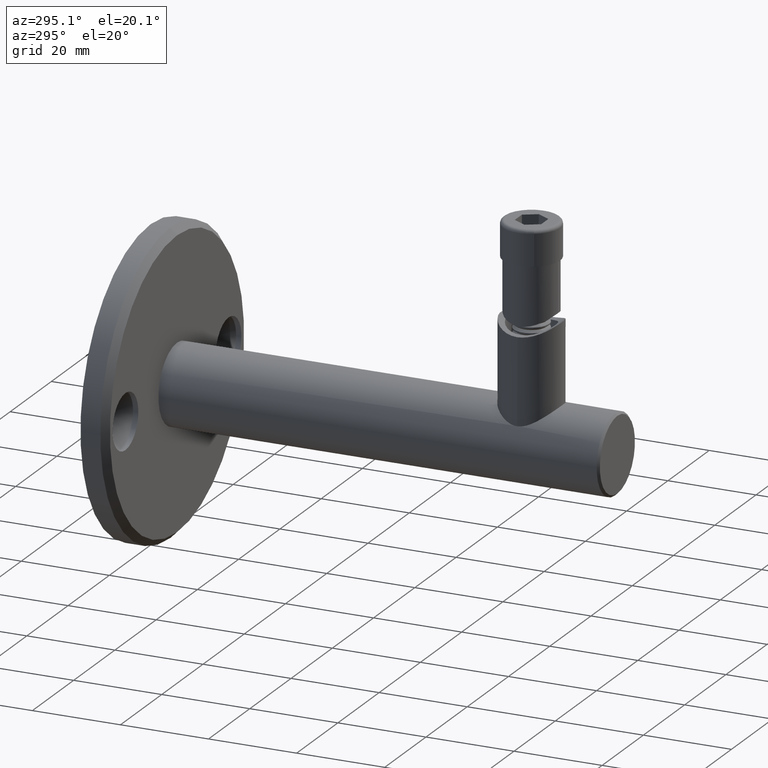
[diagram: clean part render]
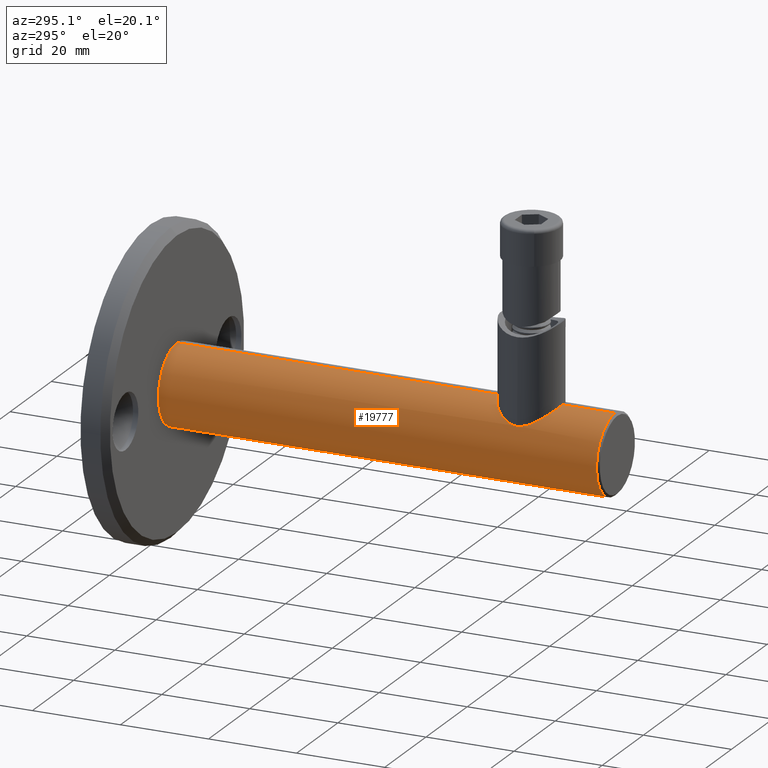
[diagram: same view with one face highlighted and labeled with its STEP entity id]
A machine part, auxiliary view. The second image highlights one B-rep face of the part: STEP entity #19777.
In plain terms, the highlighted cylindrical surface (partial cylindrical patch) has radius 9 mm, axis along (-0, -1, -0).
Its self-contained STEP definition (entity closure, byte-faithful):
#221 = CARTESIAN_POINT ( 'NONE',  ( 1.102182119232617714E-15, 50.00000000000000000, 9.000000000000000000 ) ) ;
#683 = CARTESIAN_POINT ( 'NONE',  ( 0.000000000000000000, 50.00000000000000000, 0.000000000000000000 ) ) ;
#720 = CARTESIAN_POINT ( 'NONE',  ( -6.901447485519317304, -28.81564184799238859, 5.777189734903891427 ) ) ;
#877 = CARTESIAN_POINT ( 'NONE',  ( -3.034649980702809557, -24.07687916812426110, 8.476014061617792805 ) ) ;
#1262 = CARTESIAN_POINT ( 'NONE',  ( -4.904185438183034762, -35.63889238599270470, 7.548801432386532895 ) ) ;
#1445 = CARTESIAN_POINT ( 'NONE',  ( -1.700212666243229753, -37.39767429160180967, 8.841207189430052793 ) ) ;
#1795 = CARTESIAN_POINT ( 'NONE',  ( -0.9851978571133407359, -37.53564913544677495, 8.949307636897200879 ) ) ;
#1873 = EDGE_CURVE ( 'NONE', #25611, #13053, #20377, .T. ) ;
#2093 = AXIS2_PLACEMENT_3D ( 'NONE', #5207, #24643, #22846 ) ;
#2539 = CARTESIAN_POINT ( 'NONE',  ( -1.931968433074071401, -23.65054151133246663, 8.803477324507776203 ) ) ;
#2586 = VERTEX_POINT ( 'NONE', #11164 ) ;
#2776 = CARTESIAN_POINT ( 'NONE',  ( -6.840797325290541409, -28.58492748036323405, 5.849338634152902117 ) ) ;
#3034 = CARTESIAN_POINT ( 'NONE',  ( 0.000000000000000000, -49.49999999999999289, 0.000000000000000000 ) ) ;
#3173 = ORIENTED_EDGE ( 'NONE', *, *, #21369, .T. ) ;
#3394 = ORIENTED_EDGE ( 'NONE', *, *, #11229, .F. ) ;
#3549 = LINE ( 'NONE', #7060, #18672 ) ;
#4564 = VERTEX_POINT ( 'NONE', #19939 ) ;
#4577 = CARTESIAN_POINT ( 'NONE',  ( -0.4878482194025477447, -23.41258191765996344, 8.990064276220683936 ) ) ;
#4829 = CARTESIAN_POINT ( 'NONE',  ( -7.100000000000023626, -30.50000000000049738, 5.530822723610357095 ) ) ;
#4913 = CARTESIAN_POINT ( 'NONE',  ( -3.649517285733675731, -24.40538292654261809, 8.229750379067649391 ) ) ;
#5050 = CARTESIAN_POINT ( 'NONE',  ( -6.999209624127993301, -31.71610517380793581, 5.658361447977551251 ) ) ;
#5207 = CARTESIAN_POINT ( 'NONE',  ( 0.000000000000000000, -50.00000000000000000, 0.000000000000000000 ) ) ;
#5400 = CARTESIAN_POINT ( 'NONE',  ( -7.036887180601791414, -31.47538400372532763, 5.611048169124058127 ) ) ;
#5653 = CARTESIAN_POINT ( 'NONE',  ( -2.390454183460617443, -37.18979786051200165, 8.679933927421631168 ) ) ;
#5826 = CARTESIAN_POINT ( 'NONE',  ( -1.226321149842540814, -37.49748313187873805, 8.919293924651908512 ) ) ;
#6485 = CARTESIAN_POINT ( 'NONE',  ( -4.403010851524665092, -24.91172413424104448, 7.860507608415936431 ) ) ;
#6557 = ORIENTED_EDGE ( 'NONE', *, *, #12321, .T. ) ;
#6564 = CARTESIAN_POINT ( 'NONE',  ( -6.700917295695314024, -28.14167046462511124, 6.009074629171069049 ) ) ;
#6756 = B_SPLINE_CURVE_WITH_KNOTS ( 'NONE', 3,
 ( #23121, #12838, #7268, #5400, #5050, #18791, #7025, #20777, #13101, #18873, #20953, #9142, #22946, #1262, #21031, #21221, #13615, #7608, #13546, #25272, #5653, #23201, #1445, #5826, #1795, #15264, #23437, #7764 ),
 .UNSPECIFIED., .F., .F.,
 ( 4, 2, 2, 2, 2, 2, 2, 2, 2, 2, 2, 2, 2, 4 ),
 ( 0.02349034607712438202, 0.02422523904891564842, 0.02496013202070692868, 0.02642991796428950310, 0.02716481093608077990, 0.02789970390787206017, 0.02936948985145461724, 0.03010438282324590445, 0.03083927579503718819, 0.03230906173861976260, 0.03304395471041106369, 0.03377884768220235090, 0.03451374065399364505, 0.03524863362578493919 ),
 .UNSPECIFIED. ) ;
#6765 = VECTOR ( 'NONE', #16170, 1000.000000000000000 ) ;
#6815 = CARTESIAN_POINT ( 'NONE',  ( -6.999035834797624922, -29.28322674140409276, 5.658568371211792680 ) ) ;
#7025 = CARTESIAN_POINT ( 'NONE',  ( -6.711014168470452290, -32.86197445005071671, 6.002438176563244632 ) ) ;
#7060 = CARTESIAN_POINT ( 'NONE',  ( 1.102182119232617714E-15, -50.00000000000000000, 9.000000000000000000 ) ) ;
#7268 = CARTESIAN_POINT ( 'NONE',  ( -7.087138617541656416, -30.99154995981161775, 5.547441659404629632 ) ) ;
#7608 = CARTESIAN_POINT ( 'NONE',  ( -3.661210313803422434, -36.59986145722769635, 8.232096660952265665 ) ) ;
#7764 = CARTESIAN_POINT ( 'NONE',  ( 1.102182133512144144E-15, -37.60000000000000142, 9.000000000000000000 ) ) ;
#8428 = CARTESIAN_POINT ( 'NONE',  ( -3.843407015827263074, -24.52592639497078864, 8.140745888175233702 ) ) ;
#8686 = CYLINDRICAL_SURFACE ( 'NONE', #2093, 9.000000000000000000 ) ;
#9027 = ORIENTED_EDGE ( 'NONE', *, *, #22388, .F. ) ;
#9142 = CARTESIAN_POINT ( 'NONE',  ( -5.647933218577960268, -34.82488779219372077, 7.014725167610412981 ) ) ;
#10379 = VERTEX_POINT ( 'NONE', #18919 ) ;
#10409 = CARTESIAN_POINT ( 'NONE',  ( -6.444372319635192525, -27.51149381161136276, 6.283838940911218529 ) ) ;
#10450 = DIRECTION ( 'NONE',  ( 0.000000000000000000, 0.000000000000000000, -1.000000000000000000 ) ) ;
#11164 = CARTESIAN_POINT ( 'NONE',  ( 1.102182133512144144E-15, -37.60000000000000142, 9.000000000000000000 ) ) ;
#11197 = CARTESIAN_POINT ( 'NONE',  ( -7.100000000000023626, -30.50000000000049738, 5.530822723610357095 ) ) ;
#11229 = EDGE_CURVE ( 'NONE', #15850, #25611, #3549, .T. ) ;
#11944 = LINE ( 'NONE', #18040, #6765 ) ;
#12321 = EDGE_CURVE ( 'NONE', #15850, #19316, #19379, .T. ) ;
#12838 = CARTESIAN_POINT ( 'NONE',  ( -7.099999999999980105, -30.74712494291683385, 5.530822723609957414 ) ) ;
#12866 = EDGE_CURVE ( 'NONE', #19316, #4564, #11944, .T. ) ;
#13053 = VERTEX_POINT ( 'NONE', #11197 ) ;
#13101 = CARTESIAN_POINT ( 'NONE',  ( -6.344967054989482769, -33.69398577679270801, 6.384622698937412189 ) ) ;
#13317 = DIRECTION ( 'NONE',  ( -0.000000000000000000, -1.000000000000000000, -0.000000000000000000 ) ) ;
#13546 = CARTESIAN_POINT ( 'NONE',  ( -3.262933733624374888, -36.82332639782433148, 8.399982734281046248 ) ) ;
#13615 = CARTESIAN_POINT ( 'NONE',  ( -4.217187458567548397, -36.21629448411457730, 7.953508599265550316 ) ) ;
#14069 = CARTESIAN_POINT ( 'NONE',  ( 1.102182119232617714E-15, -50.00000000000000000, 9.000000000000000000 ) ) ;
#14260 = VECTOR ( 'NONE', #23887, 1000.000000000000000 ) ;
#14382 = CARTESIAN_POINT ( 'NONE',  ( 1.102181692775950827E-15, -23.40000000000000213, 9.000000000000000000 ) ) ;
#14544 = CARTESIAN_POINT ( 'NONE',  ( -6.133504548540692269, -26.91669141272640786, 6.588021161655864155 ) ) ;
#14630 = CARTESIAN_POINT ( 'NONE',  ( -6.621432705729931811, -27.92750456645546819, 6.096982479299294155 ) ) ;
#14721 = CARTESIAN_POINT ( 'NONE',  ( -5.647463018739796503, -26.17426995938870959, 7.015177674628093385 ) ) ;
#15264 = CARTESIAN_POINT ( 'NONE',  ( -0.4940281673155837994, -37.58709459120397156, 8.989808572343795490 ) ) ;
#15850 = VERTEX_POINT ( 'NONE', #221 ) ;
#16170 = DIRECTION ( 'NONE',  ( -0.000000000000000000, -1.000000000000000000, -0.000000000000000000 ) ) ;
#16370 = CARTESIAN_POINT ( 'NONE',  ( -6.017492695657772117, -26.72525147979690274, 6.694506759005018459 ) ) ;
#16689 = CARTESIAN_POINT ( 'NONE',  ( -0.9730750353771459027, -23.46276929932089672, 8.950551745634417244 ) ) ;
#16780 = DIRECTION ( 'NONE',  ( 0.000000000000000000, 0.000000000000000000, 1.000000000000000000 ) ) ;
#17874 = CIRCLE ( 'NONE', #20782, 9.000000000000000000 ) ;
#18035 = ORIENTED_EDGE ( 'NONE', *, *, #12866, .T. ) ;
#18040 = CARTESIAN_POINT ( 'NONE',  ( 0.000000000000000000, -50.00000000000000000, -9.000000000000000000 ) ) ;
#18433 = CARTESIAN_POINT ( 'NONE',  ( -4.749002504981165274, -25.20349375760228128, 7.654281073868442142 ) ) ;
#18503 = CARTESIAN_POINT ( 'NONE',  ( -3.245744296518946470, -24.18110154753521002, 8.397196656161371564 ) ) ;
#18589 = CARTESIAN_POINT ( 'NONE',  ( -7.036360993561381783, -29.52082442820088914, 5.611709509191468825 ) ) ;
#18672 = VECTOR ( 'NONE', #13317, 1000.000000000000000 ) ;
#18686 = CARTESIAN_POINT ( 'NONE',  ( 0.000000000000000000, 50.00000000000000000, -9.000000000000000000 ) ) ;
#18791 = CARTESIAN_POINT ( 'NONE',  ( -6.851695778901984113, -32.42240827567150774, 5.837655651642621457 ) ) ;
#18873 = CARTESIAN_POINT ( 'NONE',  ( -6.131066913792728279, -34.08750199579763773, 6.590298357076469493 ) ) ;
#18919 = CARTESIAN_POINT ( 'NONE',  ( 1.102182119232617714E-15, -49.49999999999999289, 9.000000000000000000 ) ) ;
#19009 = AXIS2_PLACEMENT_3D ( 'NONE', #683, #22293, #10450 ) ;
#19316 = VERTEX_POINT ( 'NONE', #18686 ) ;
#19379 = CIRCLE ( 'NONE', #19009, 9.000000000000000000 ) ;
#19777 = ADVANCED_FACE ( 'NONE', ( #23795 ), #8686, .T. ) ;
#19939 = CARTESIAN_POINT ( 'NONE',  ( 0.000000000000000000, -49.49999999999999289, -9.000000000000000000 ) ) ;
#20246 = CARTESIAN_POINT ( 'NONE',  ( -2.385482451354641764, -23.79613541460589943, 8.690059435168860702 ) ) ;
#20377 = B_SPLINE_CURVE_WITH_KNOTS ( 'NONE', 3,
 ( #14382, #24529, #4577, #16689, #20403, #2539, #20246, #877, #18503, #4913, #8428, #6485, #18433, #22245, #14721, #16370, #14544, #20481, #10409, #14630, #6564, #2776, #720, #6815, #18589, #20568, #22331, #4829 ),
 .UNSPECIFIED., .F., .F.,
 ( 4, 2, 2, 2, 2, 2, 2, 2, 2, 2, 2, 2, 2, 4 ),
 ( 0.01175568390540726246, 0.01248910029113958244, 0.01322251667687190241, 0.01468934944833654235, 0.01542276583406886059, 0.01615618221980117883, 0.01762301499126581877, 0.01908984776273045872, 0.01982326414846277696, 0.02055668053419509866, 0.02129009691992742037, 0.02202351330565974208, 0.02275692969139206379, 0.02349034607712438202 ),
 .UNSPECIFIED. ) ;
#20403 = CARTESIAN_POINT ( 'NONE',  ( -1.216344883786946607, -23.50072139236624835, 8.920702544142194768 ) ) ;
#20481 = CARTESIAN_POINT ( 'NONE',  ( -6.346787344190294000, -27.30966006729315865, 6.382804343000088032 ) ) ;
#20568 = CARTESIAN_POINT ( 'NONE',  ( -7.086874756980304113, -30.00465465481586946, 5.547780261161886273 ) ) ;
#20775 = CARTESIAN_POINT ( 'NONE',  ( 1.102181692775950827E-15, -23.40000000000000213, 9.000000000000000000 ) ) ;
#20777 = CARTESIAN_POINT ( 'NONE',  ( -6.444010490280276393, -33.48937910262041129, 6.284224105597802534 ) ) ;
#20782 = AXIS2_PLACEMENT_3D ( 'NONE', #3034, #22581, #16780 ) ;
#20953 = CARTESIAN_POINT ( 'NONE',  ( -6.016190382144403159, -34.27675843812372847, 6.695657771305894457 ) ) ;
#20987 = ORIENTED_EDGE ( 'NONE', *, *, #24480, .F. ) ;
#21031 = CARTESIAN_POINT ( 'NONE',  ( -4.738862843533047098, -35.79182858454558414, 7.653944681207942580 ) ) ;
#21221 = CARTESIAN_POINT ( 'NONE',  ( -4.395531394409265324, -36.08028445321511413, 7.856143710089068755 ) ) ;
#21369 = EDGE_CURVE ( 'NONE', #4564, #10379, #17874, .T. ) ;
#22245 = CARTESIAN_POINT ( 'NONE',  ( -5.370187473438565284, -25.83447862847044973, 7.232021159414665945 ) ) ;
#22293 = DIRECTION ( 'NONE',  ( -0.000000000000000000, -1.000000000000000000, -0.000000000000000000 ) ) ;
#22331 = CARTESIAN_POINT ( 'NONE',  ( -7.100000000000020073, -30.25337159366786111, 5.530822723609910341 ) ) ;
#22388 = EDGE_CURVE ( 'NONE', #13053, #2586, #6756, .T. ) ;
#22581 = DIRECTION ( 'NONE',  ( 0.000000000000000000, 1.000000000000000000, 0.000000000000000000 ) ) ;
#22846 = DIRECTION ( 'NONE',  ( 0.000000000000000000, 0.000000000000000000, -1.000000000000000000 ) ) ;
#22946 = CARTESIAN_POINT ( 'NONE',  ( -5.371230346589467075, -35.16442747092047938, 7.231295601386130478 ) ) ;
#23121 = CARTESIAN_POINT ( 'NONE',  ( -7.100000000000023626, -30.50000000000049738, 5.530822723610357095 ) ) ;
#23201 = CARTESIAN_POINT ( 'NONE',  ( -1.932978897887949410, -37.33602656504897510, 8.793128952082380323 ) ) ;
#23424 = EDGE_LOOP ( 'NONE', ( #3394, #6557, #18035, #3173, #20987, #9027, #24047 ) ) ;
#23437 = CARTESIAN_POINT ( 'NONE',  ( -0.2456127189032665803, -37.60000000000000142, 9.000000000000001776 ) ) ;
#23795 = FACE_OUTER_BOUND ( 'NONE', #23424, .T. ) ;
#23887 = DIRECTION ( 'NONE',  ( -0.000000000000000000, -1.000000000000000000, -0.000000000000000000 ) ) ;
#24047 = ORIENTED_EDGE ( 'NONE', *, *, #1873, .F. ) ;
#24480 = EDGE_CURVE ( 'NONE', #2586, #10379, #24724, .T. ) ;
#24529 = CARTESIAN_POINT ( 'NONE',  ( -0.2443633173050469287, -23.40000000000000213, 9.000000000000000000 ) ) ;
#24643 = DIRECTION ( 'NONE',  ( -0.000000000000000000, -1.000000000000000000, -0.000000000000000000 ) ) ;
#24724 = LINE ( 'NONE', #14069, #14260 ) ;
#25272 = CARTESIAN_POINT ( 'NONE',  ( -2.616000072262458787, -37.10468333402778285, 8.614415548572273096 ) ) ;
#25611 = VERTEX_POINT ( 'NONE', #20775 ) ;